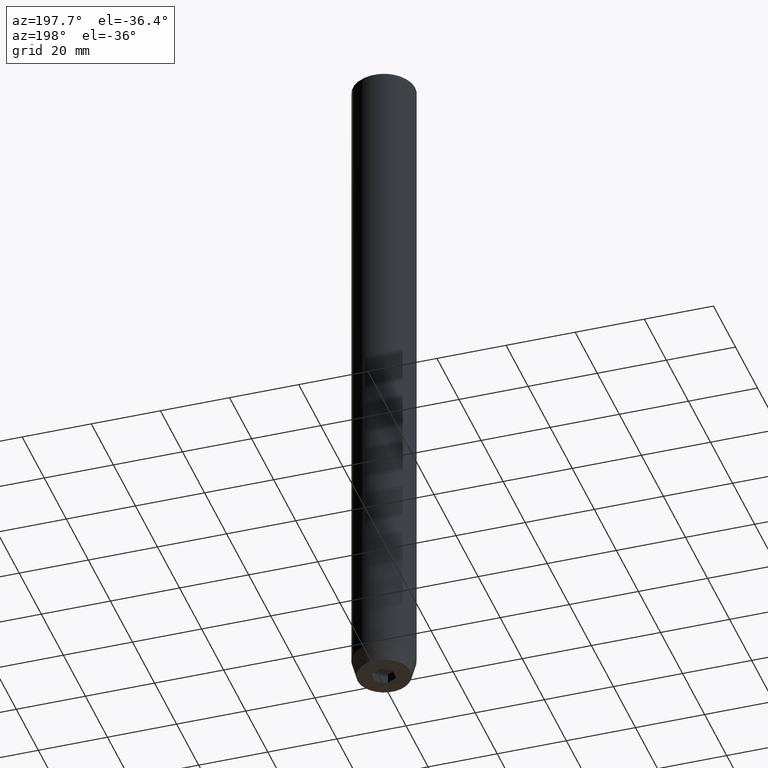
[diagram: clean part render]
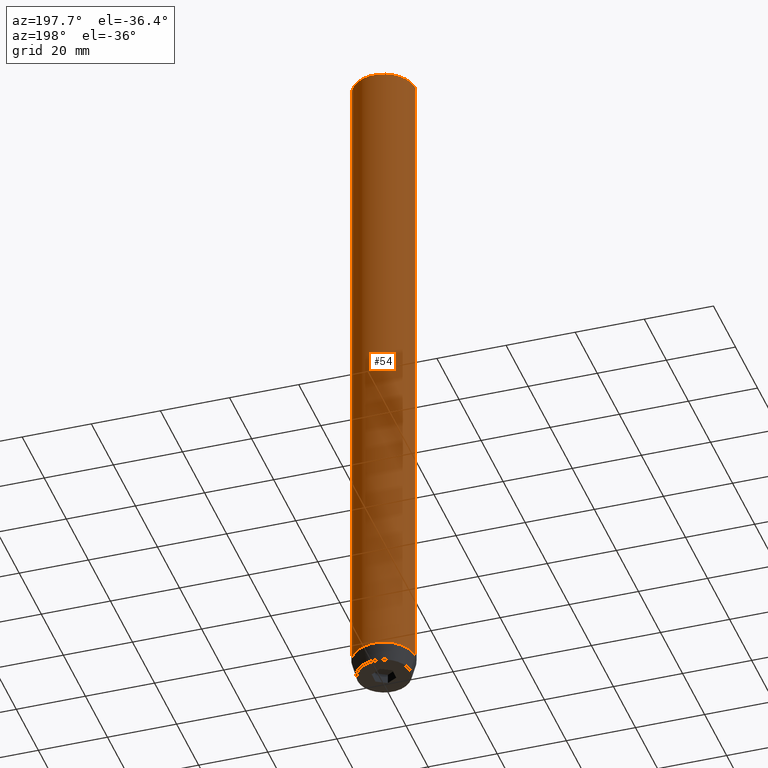
[diagram: same view with one face highlighted and labeled with its STEP entity id]
A machine part, auxiliary view. The second image highlights one B-rep face of the part: STEP entity #54.
In plain terms, the highlighted cylindrical surface (edge-blend (fillet) strip) has radius 9 mm, axis along (-0, -0, 1).
Its self-contained STEP definition (entity closure, byte-faithful):
#4 = AXIS2_PLACEMENT_3D ( 'NONE', #286, #144, #471 ) ;
#40 = AXIS2_PLACEMENT_3D ( 'NONE', #503, #283, #275 ) ;
#44 = LINE ( 'NONE', #364, #105 ) ;
#54 = ADVANCED_FACE ( 'NONE', ( #569 ), #370, .T. ) ;
#60 = ORIENTED_EDGE ( 'NONE', *, *, #533, .T. ) ;
#105 = VECTOR ( 'NONE', #548, 1000.000000000000000 ) ;
#110 = EDGE_CURVE ( 'NONE', #443, #384, #410, .T. ) ;
#124 = DIRECTION ( 'NONE',  ( 1.000000000000000000, 0.000000000000000000, 0.000000000000000000 ) ) ;
#142 = LINE ( 'NONE', #464, #484 ) ;
#144 = DIRECTION ( 'NONE',  ( 0.000000000000000000, 0.000000000000000000, -1.000000000000000000 ) ) ;
#149 = EDGE_LOOP ( 'NONE', ( #466, #60, #462, #315 ) ) ;
#160 = CARTESIAN_POINT ( 'NONE',  ( -9.000000000000000000, 1.102182119232617714E-15, -195.0000000000000000 ) ) ;
#162 = CIRCLE ( 'NONE', #317, 9.000000000000000000 ) ;
#212 = EDGE_CURVE ( 'NONE', #575, #236, #162, .T. ) ;
#236 = VERTEX_POINT ( 'NONE', #160 ) ;
#272 = CARTESIAN_POINT ( 'NONE',  ( -9.000000000000000000, 1.102182119232617714E-15, -0.4999999999999952260 ) ) ;
#275 = DIRECTION ( 'NONE',  ( 1.000000000000000000, 0.000000000000000000, 0.000000000000000000 ) ) ;
#283 = DIRECTION ( 'NONE',  ( -0.000000000000000000, -0.000000000000000000, 1.000000000000000000 ) ) ;
#286 = CARTESIAN_POINT ( 'NONE',  ( 0.000000000000000000, 0.000000000000000000, -0.4999999999999952260 ) ) ;
#315 = ORIENTED_EDGE ( 'NONE', *, *, #408, .F. ) ;
#317 = AXIS2_PLACEMENT_3D ( 'NONE', #487, #489, #124 ) ;
#364 = CARTESIAN_POINT ( 'NONE',  ( 9.000000000000000000, 0.000000000000000000, 0.000000000000000000 ) ) ;
#370 = CYLINDRICAL_SURFACE ( 'NONE', #40, 9.000000000000000000 ) ;
#374 = CARTESIAN_POINT ( 'NONE',  ( 9.000000000000000000, 0.000000000000000000, -195.0000000000000000 ) ) ;
#384 = VERTEX_POINT ( 'NONE', #451 ) ;
#408 = EDGE_CURVE ( 'NONE', #575, #384, #44, .T. ) ;
#410 = CIRCLE ( 'NONE', #4, 9.000000000000000000 ) ;
#443 = VERTEX_POINT ( 'NONE', #272 ) ;
#451 = CARTESIAN_POINT ( 'NONE',  ( 9.000000000000000000, 0.000000000000000000, -0.4999999999999952260 ) ) ;
#453 = DIRECTION ( 'NONE',  ( -0.000000000000000000, -0.000000000000000000, 1.000000000000000000 ) ) ;
#462 = ORIENTED_EDGE ( 'NONE', *, *, #110, .T. ) ;
#464 = CARTESIAN_POINT ( 'NONE',  ( -9.000000000000000000, 1.102182119232617714E-15, 0.000000000000000000 ) ) ;
#466 = ORIENTED_EDGE ( 'NONE', *, *, #212, .T. ) ;
#471 = DIRECTION ( 'NONE',  ( 1.000000000000000000, 0.000000000000000000, 0.000000000000000000 ) ) ;
#484 = VECTOR ( 'NONE', #453, 1000.000000000000000 ) ;
#487 = CARTESIAN_POINT ( 'NONE',  ( 0.000000000000000000, 0.000000000000000000, -195.0000000000000000 ) ) ;
#489 = DIRECTION ( 'NONE',  ( -0.000000000000000000, -0.000000000000000000, 1.000000000000000000 ) ) ;
#503 = CARTESIAN_POINT ( 'NONE',  ( 0.000000000000000000, 0.000000000000000000, 0.000000000000000000 ) ) ;
#533 = EDGE_CURVE ( 'NONE', #236, #443, #142, .T. ) ;
#548 = DIRECTION ( 'NONE',  ( -0.000000000000000000, -0.000000000000000000, 1.000000000000000000 ) ) ;
#569 = FACE_OUTER_BOUND ( 'NONE', #149, .T. ) ;
#575 = VERTEX_POINT ( 'NONE', #374 ) ;